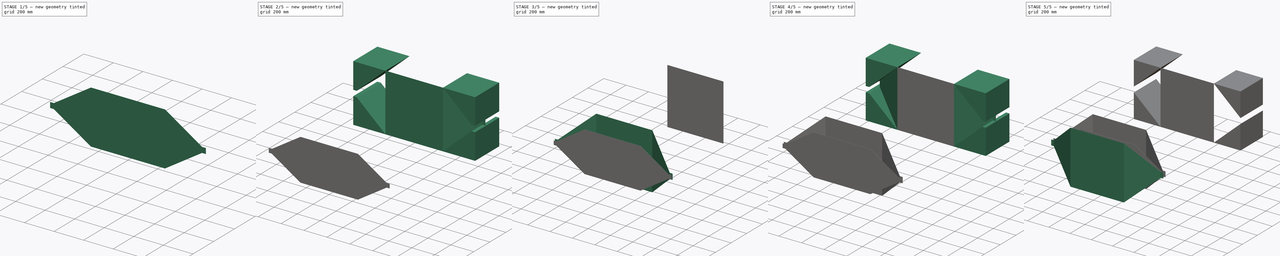
[diagram: build sequence overview — one tinted view per stage of 5, left to right]
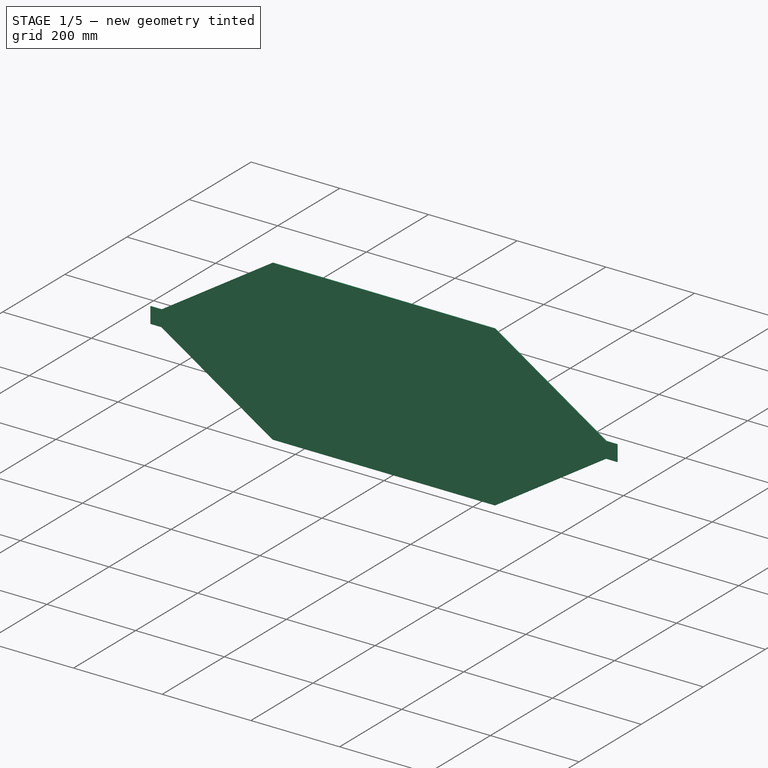
[diagram: stage 1 of 5 — iso view after this stage's code; geometry added in this stage tinted green]
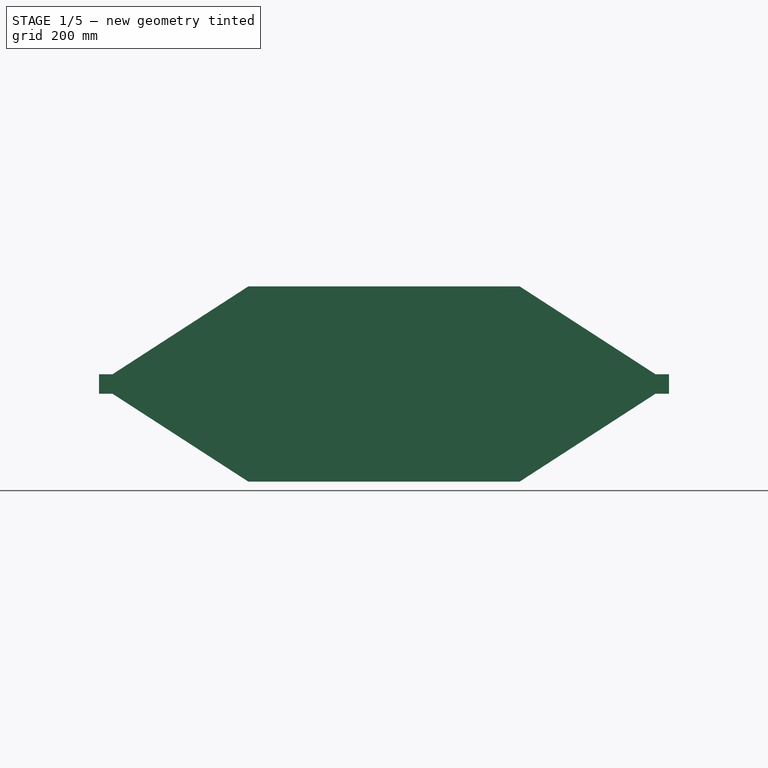
[diagram: stage 1 of 5 — front view after this stage's code; geometry added in this stage tinted green]
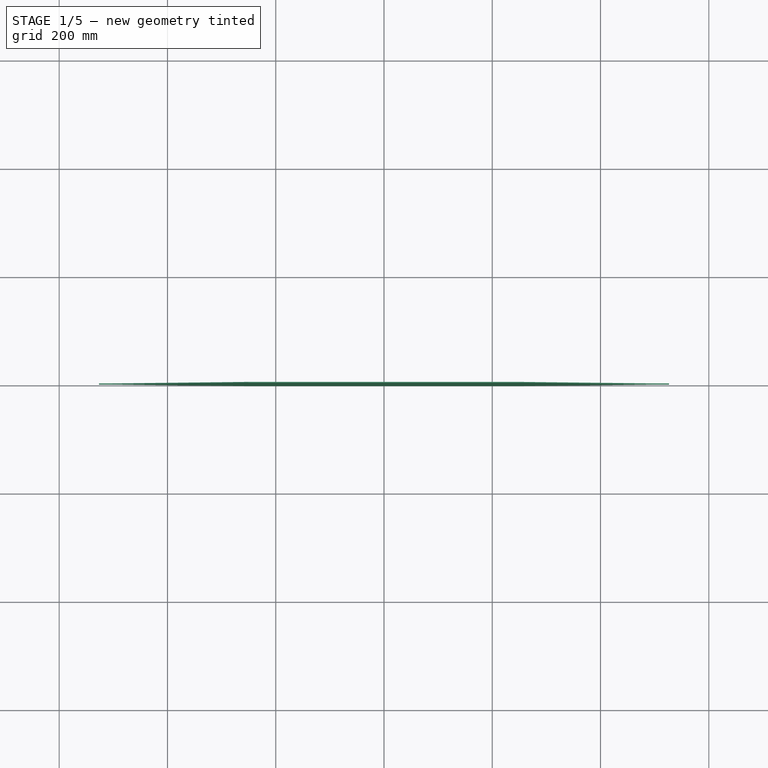
[diagram: stage 1 of 5 — top view after this stage's code; geometry added in this stage tinted green]
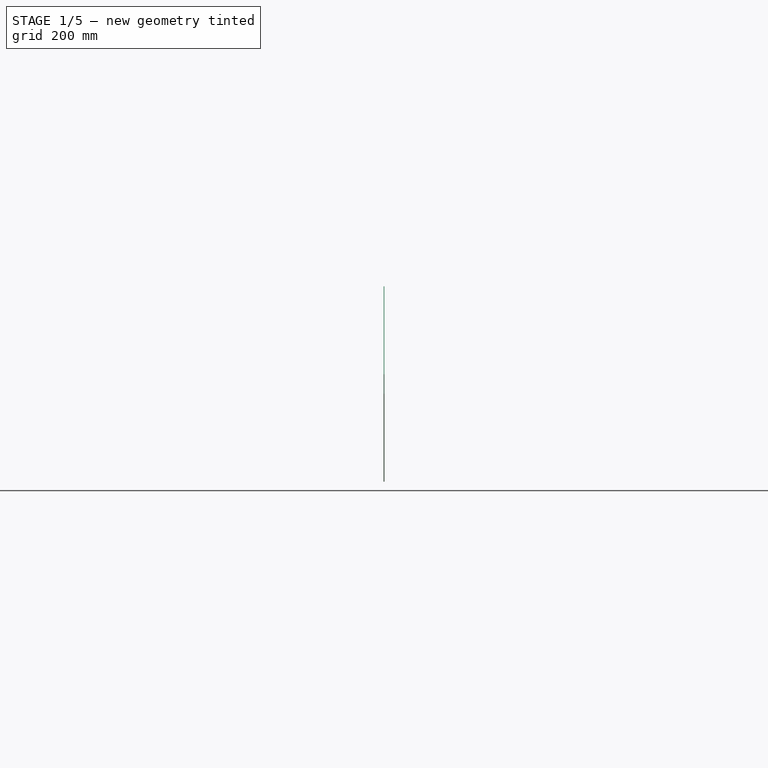
[diagram: stage 1 of 5 — right view after this stage's code; geometry added in this stage tinted green]
FCSTD DOCUMENT  (FreeCAD 0.17RUnknown)
Label: SimulationModel
License: All rights reserved
LicenseURL: http://en.wikipedia.org/wiki/All_rights_reserved
objects: Part::Extrusion×25, Part::RuledSurface×20, Part::Feature×15, Sketcher::SketchObject×6, Part::Cut×4, Part::MultiFuse×3, App::DocumentObjectGroup×2
note: 73 computed .brp shape members not serialized (recipe doc carries the construction recipe); baked Part::Feature solids carry a one-line shape summary decoded from their .brp

FEATURE [Part::Feature] Line
  shape: bbox 25 x 2e-07 x 2e-07 mm, 0 faces, 0 solids (baked)
FEATURE [Part::Feature] Line001
  shape: bbox 25 x 2e-07 x 2e-07 mm, 0 faces, 0 solids (baked)
FEATURE [Part::Feature] Line002
  shape: bbox 2e-07 x 36.1 x 2e-07 mm, 0 faces, 0 solids (baked)
FEATURE [Part::Feature] Line003
  shape: bbox 250.7 x 162.2 x 2e-07 mm, 0 faces, 0 solids (baked)
FEATURE [Part::Feature] Line004
  shape: bbox 501.5 x 2e-07 x 2e-07 mm, 0 faces, 0 solids (baked)
FEATURE [Part::Feature] Line005
  shape: bbox 250.7 x 162.2 x 2e-07 mm, 0 faces, 0 solids (baked)
FEATURE [Part::Feature] Line006
  shape: bbox 501.5 x 2e-07 x 2e-07 mm, 0 faces, 0 solids (baked)
FEATURE [Part::Feature] Line007
  shape: bbox 25 x 2e-07 x 2e-07 mm, 0 faces, 0 solids (baked)
FEATURE [Part::Feature] Line008
  shape: bbox 25 x 2e-07 x 2e-07 mm, 0 faces, 0 solids (baked)
FEATURE [Part::Feature] Line009
  shape: bbox 2e-07 x 36.1 x 2e-07 mm, 0 faces, 0 solids (baked)
FEATURE [Part::Feature] Line010
  shape: bbox 250.7 x 162.2 x 2e-07 mm, 0 faces, 0 solids (baked)
FEATURE [Part::Feature] Line011
  shape: bbox 250.7 x 162.2 x 2e-07 mm, 0 faces, 0 solids (baked)
FEATURE [App::DocumentObjectGroup] _  label="0"
  Group = -> [Line,Line001,Line002,Line003,Line004,Line005,Line006,Line007,Line008,Line009,Line010,Line011]
FEATURE [App::DocumentObjectGroup] septum
  Group = -> [_]
FEATURE [Part::RuledSurface] Ruled_Surface015
  Curve1 = -> Line003 [Edge1]
  Curve2 = -> Line005 [Edge1]
  Orientation = 0
FEATURE [Part::RuledSurface] Ruled_Surface016
  Curve1 = -> Line004 [Edge1]
  Curve2 = -> Line006 [Edge1]
  Orientation = 0
FEATURE [Part::RuledSurface] Ruled_Surface017
  Curve1 = -> Line010 [Edge1]
  Curve2 = -> Line011 [Edge1]
  Orientation = 0
FEATURE [Part::RuledSurface] Ruled_Surface018
  Curve1 = -> Line008 [Edge1]
  Curve2 = -> Line007 [Edge1]
  Orientation = 0
FEATURE [Part::RuledSurface] Ruled_Surface019
  Curve1 = -> Line001 [Edge1]
  Curve2 = -> Line [Edge1]
  Orientation = 0
FEATURE [Part::Extrusion] Extrude023
  Base = -> Ruled_Surface018
  Dir = (0,0,1.5)
  Solid = true
FEATURE [Part::Extrusion] Extrude024
  Base = -> Ruled_Surface017
  Dir = (0,0,1.5)
  Solid = true
FEATURE [Part::Extrusion] Extrude025
  Base = -> Ruled_Surface016
  Dir = (0,0,1.5)
  Solid = true
FEATURE [Part::Extrusion] Extrude026
  Base = -> Ruled_Surface015
  Dir = (0,0,1.5)
  Solid = true
FEATURE [Part::Extrusion] Extrude027
  Base = -> Ruled_Surface019
  Dir = (0,0,1.5)
  Solid = true
FEATURE [Part::MultiFuse] Fusion002  label="Septum"
  Placement = pos=(-250.75,0.75,-180.25) rot=(1,0,0;1.5708rad)
  Shapes = -> [Extrude023,Extrude024,Extrude025,Extrude026,Extrude027]
FEATURE [Part::Feature] Cut001_solid  label="Cut001 (Solid)"
  Placement = pos=(0,-3.05684,0) rot=(0,0,1;0rad)
  shape: bbox 1053 x 136.1 x 501.5 mm, 26 faces (baked)
FEATURE [Part::Feature] Cut003_solid  label="Cut003 (Solid)"
  Placement = pos=(0,3.05684,0) rot=(0,0,1;0rad)
  shape: bbox 1053 x 136.1 x 501.5 mm, 26 faces (baked)
FEATURE [Part::Feature] Fusion002_solid  label="Septum (Solid)"
  shape: bbox 1053 x 1.5 x 360.5 mm, 22 faces (baked)
FEATURE [Sketcher::SketchObject] Sketch006
  ExternalGeometry = -> [Cut003_solid]
  Placement = pos=(-237.091,3.05684,263.061) rot=(0,-1,0;0.733522rad)
  Support = -> Cut003_solid [Face18]
  sketch-geometry (2):
    g0: LineSegment StartX=-358.282 StartY=13.9432 StartZ=0 EndX=-17.7362 EndY=150 EndZ=0
    g1: LineSegment StartX=-356.133 StartY=13.9432 StartZ=0 EndX=-15.587 EndY=150 EndZ=0
  constraints (6):
    c: PointOnObject(g0,g-5)
    c: PointOnObject(g0,g-6)
    c: Parallel(g0,g-3)
    c: PointOnObject(g1,g-5)
    c: PointOnObject(g1,g-6)
    c: Parallel(g1,g-3)
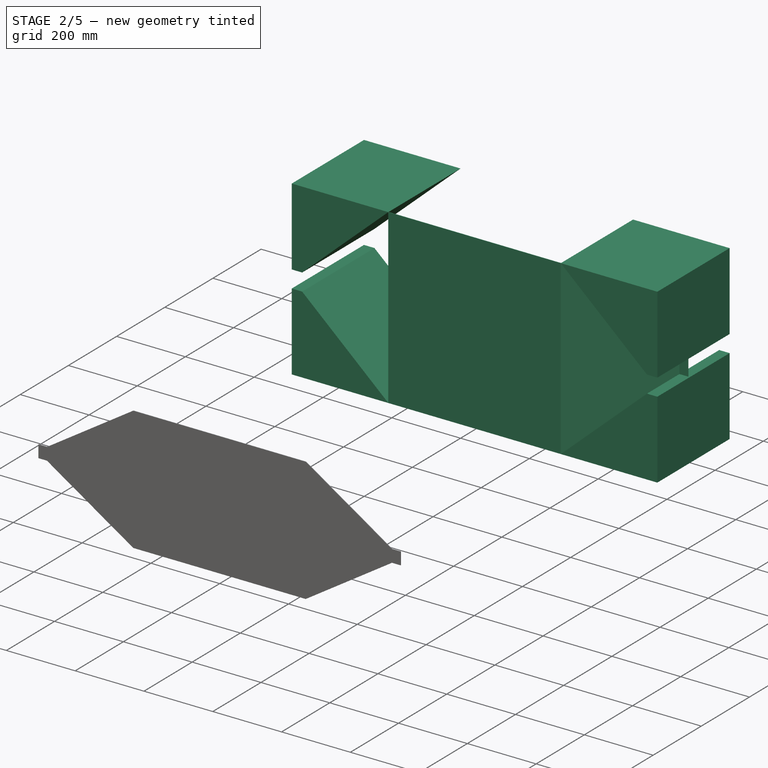
[diagram: stage 2 of 5 — iso view after this stage's code; geometry added in this stage tinted green]
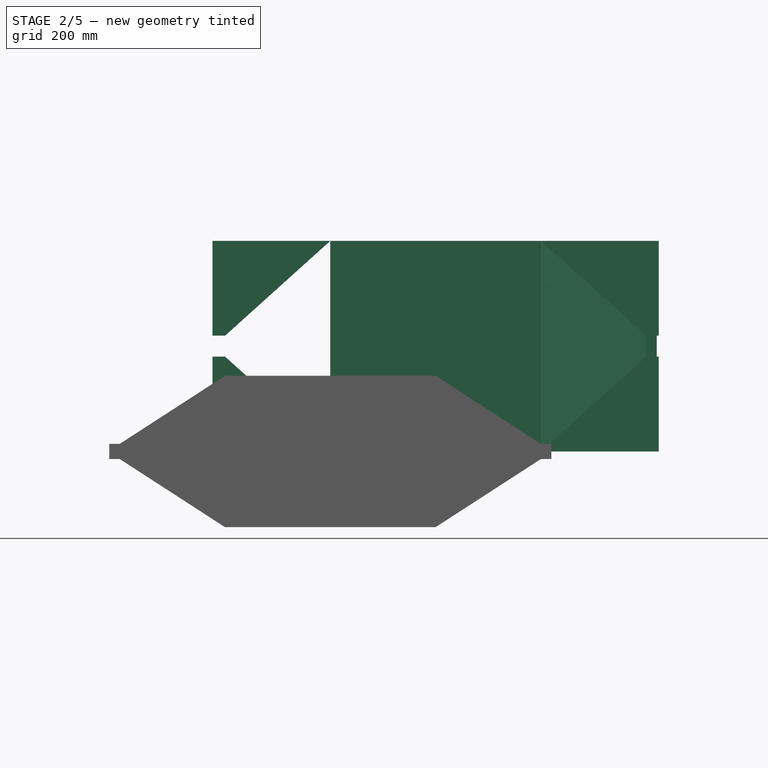
[diagram: stage 2 of 5 — front view after this stage's code; geometry added in this stage tinted green]
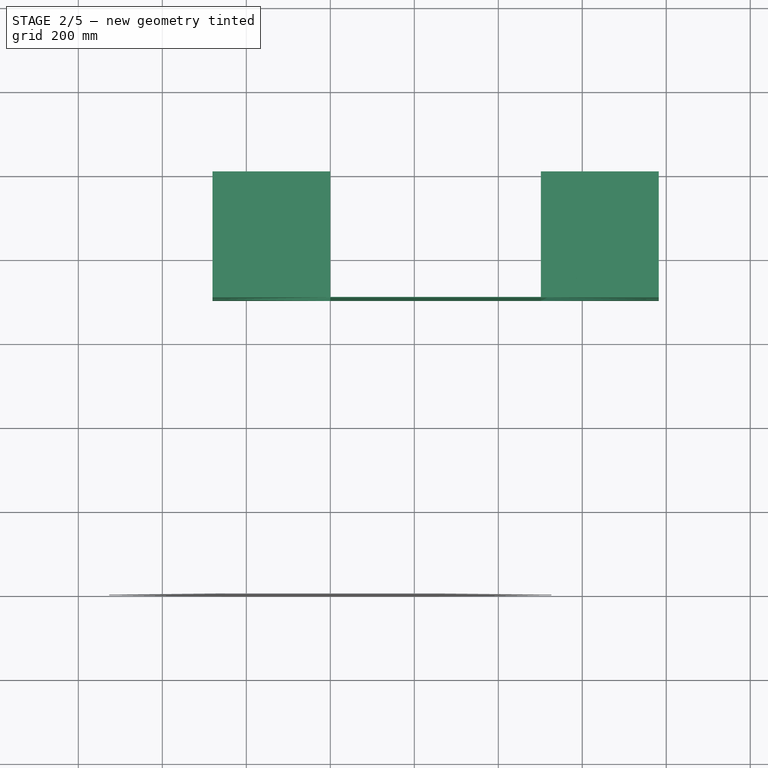
[diagram: stage 2 of 5 — top view after this stage's code; geometry added in this stage tinted green]
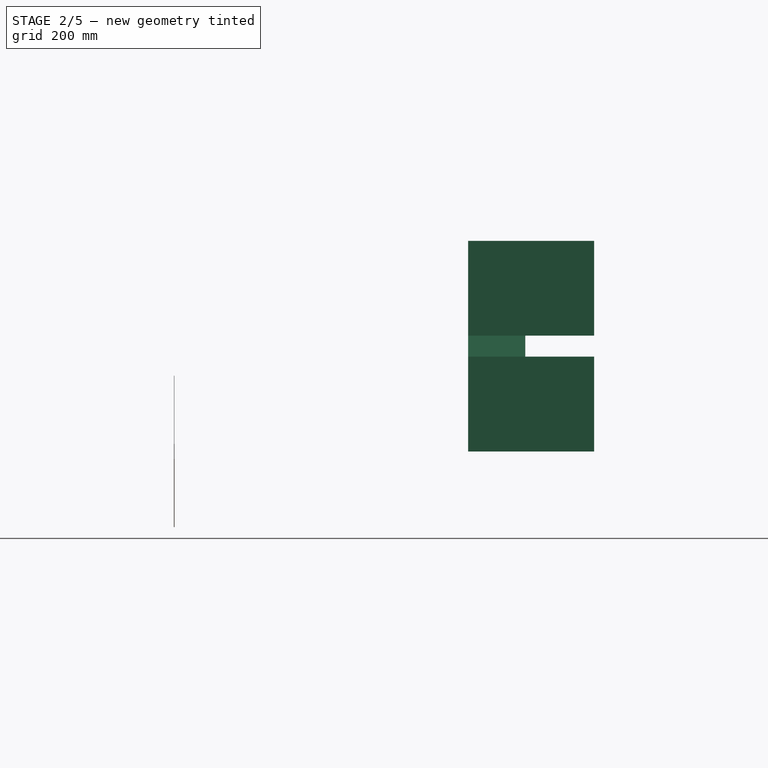
[diagram: stage 2 of 5 — right view after this stage's code; geometry added in this stage tinted green]
FEATURE [Part::Extrusion] Extrude016
  Base = -> Ruled_Surface010
  Dir = (0,0,501.5)
  Solid = true
FEATURE [Part::Extrusion] Extrude017
  Base = -> Ruled_Surface011
  Dir = (0,0,501.5)
  Solid = true
FEATURE [Part::Extrusion] Extrude018
  Base = -> Ruled_Surface012
  Dir = (0,0,501.5)
  Solid = true
FEATURE [Part::RuledSurface] Ruled_Surface013
  Orientation = 0
FEATURE [Part::Extrusion] Extrude019
  Base = -> Ruled_Surface013
  Dir = (0,0,501.5)
  Solid = true
FEATURE [Sketcher::SketchObject] Sketch004
  Placement = pos=(0,700,0) rot=(1,0,0;1.5708rad)
  Support = -> Extrude019 [Face1]
  sketch-geometry (16):
    g0: GeomPoint [constr] X=-275.644 Y=225.675 Z=0
    g1: LineSegment StartX=0 StartY=0 StartZ=0 EndX=-250.394 EndY=225.675 EndZ=0
    g2: LineSegment StartX=-250.394 StartY=225.675 StartZ=0 EndX=-250.394 EndY=0 EndZ=0
    g3: LineSegment StartX=0 StartY=0 StartZ=0 EndX=-250.394 EndY=0 EndZ=0
    g4: GeomPoint [constr] X=777.144 Y=225.675 Z=0
    g5: LineSegment StartX=501.5 StartY=0 StartZ=0 EndX=751.894 EndY=225.675 EndZ=0
    g6: LineSegment StartX=751.894 StartY=225.675 StartZ=0 EndX=751.894 EndY=0 EndZ=0
    g7: LineSegment StartX=501.5 StartY=0 StartZ=0 EndX=751.894 EndY=0 EndZ=0
    g8: GeomPoint [constr] X=-275.644 Y=275.825 Z=0
    g9: LineSegment StartX=0 StartY=501.5 StartZ=0 EndX=-250.394 EndY=275.825 EndZ=0
    g10: LineSegment StartX=-250.394 StartY=275.825 StartZ=0 EndX=-250.394 EndY=501.5 EndZ=0
    g11: LineSegment StartX=0 StartY=501.5 StartZ=0 EndX=-250.394 EndY=501.5 EndZ=0
    g12: GeomPoint [constr] X=777.144 Y=275.825 Z=0
    g13: LineSegment StartX=501.5 StartY=501.5 StartZ=0 EndX=751.894 EndY=275.825 EndZ=0
    g14: LineSegment StartX=751.894 StartY=275.825 StartZ=0 EndX=751.894 EndY=501.5 EndZ=0
    g15: LineSegment StartX=501.5 StartY=501.5 StartZ=0 EndX=751.894 EndY=501.5 EndZ=0
  constraints (19):
    c: DistanceY(g0) = 225.675
    c: DistanceX(g0) = -275.644
    c: DistanceX(g0,g1) = 25.25
    c: Coincident(g1,g-1)
    c: DistanceY(g1,g1) = 225.675
    c: Coincident(g2,g1)
    c: PointOnObject(g2,g-1)
    c: Vertical(g2)
    c: Coincident(g3,g-1)
    c: Coincident(g3,g2)
    c: Coincident(g6,g5)
    c: Vertical(g6)
    c: Coincident(g7,g6)
    c: Coincident(g10,g9)
    c: Vertical(g10)
    c: Coincident(g11,g10)
    c: Coincident(g14,g13)
    c: Vertical(g14)
    c: Coincident(g15,g14)
FEATURE [Part::RuledSurface] Ruled_Surface014
  Orientation = 0
FEATURE [Part::Extrusion] Extrude020
  Base = -> Ruled_Surface014
  Dir = (0,0,501.5)
  Solid = true
FEATURE [Sketcher::SketchObject] Sketch005
  Placement = pos=(0,700,0) rot=(1,0,0;1.5708rad)
  Support = -> Extrude020 [Face1]
  sketch-geometry (20):
    g0: GeomPoint [constr] X=-280.644 Y=225.675 Z=0
    g1: LineSegment StartX=-250.394 StartY=225.675 StartZ=0 EndX=-250.394 EndY=0 EndZ=0
    g2: LineSegment StartX=-250.394 StartY=225.675 StartZ=0 EndX=-280.644 EndY=225.675 EndZ=0
    g3: LineSegment StartX=-280.644 StartY=225.675 StartZ=0 EndX=-280.644 EndY=0 EndZ=0
    g4: GeomPoint [constr] X=782.144 Y=225.675 Z=0
    g5: LineSegment StartX=751.894 StartY=225.675 StartZ=0 EndX=751.894 EndY=0 EndZ=0
    g6: LineSegment StartX=751.894 StartY=225.675 StartZ=0 EndX=782.144 EndY=225.675 EndZ=0
    g7: LineSegment StartX=782.144 StartY=225.675 StartZ=0 EndX=782.144 EndY=0 EndZ=0
    g8: LineSegment StartX=751.894 StartY=0 StartZ=0 EndX=782.144 EndY=0 EndZ=0
    g9: LineSegment StartX=-280.644 StartY=0 StartZ=0 EndX=-250.394 EndY=0 EndZ=0
    g10: GeomPoint [constr] X=-280.644 Y=275.825 Z=0
    g11: LineSegment StartX=-250.394 StartY=275.825 StartZ=0 EndX=-250.394 EndY=501.5 EndZ=0
    g12: LineSegment StartX=-250.394 StartY=275.825 StartZ=0 EndX=-280.644 EndY=275.825 EndZ=0
    g13: LineSegment StartX=-280.644 StartY=275.825 StartZ=0 EndX=-280.644 EndY=501.5 EndZ=0
    g14: GeomPoint [constr] X=782.144 Y=275.825 Z=0
    g15: LineSegment StartX=751.894 StartY=275.825 StartZ=0 EndX=751.894 EndY=501.5 EndZ=0
    g16: LineSegment StartX=751.894 StartY=275.825 StartZ=0 EndX=782.144 EndY=275.825 EndZ=0
    g17: LineSegment StartX=782.144 StartY=275.825 StartZ=0 EndX=782.144 EndY=501.5 EndZ=0
    g18: LineSegment StartX=751.894 StartY=501.5 StartZ=0 EndX=782.144 EndY=501.5 EndZ=0
    g19: LineSegment StartX=-280.644 StartY=501.5 StartZ=0 EndX=-250.394 EndY=501.5 EndZ=0
  constraints (42):
    c: DistanceY(g0) = 225.675
    c: DistanceX(g0) = -280.644
    c: DistanceX(g0,g1) = 30.25
    c: DistanceY(g-1,g1) = 225.675
    c: PointOnObject(g1,g-1)
    c: Vertical(g1)
    c: Coincident(g2,g1)
    c: Coincident(g2,g0)
    c: Coincident(g3,g0)
    c: PointOnObject(g3,g-1)
    c: Vertical(g3)
    c: Vertical(g5)
    c: Coincident(g6,g5)
    c: Coincident(g6,g4)
    c: Coincident(g7,g4)
    c: Vertical(g7)
    c: DistanceY(g5) = 225.675
    c: Horizontal(g6)
    c: Coincident(g8,g5)
    c: Coincident(g8,g7)
    c: Horizontal(g8)
    c: DistanceX(g5,g4) = 30.25
    c: Coincident(g9,g3)
    c: Coincident(g9,g1)
    c: DistanceX(g-1,g5) = 751.894
    c: DistanceY(g7) = 0
    c: Vertical(g11)
    c: Coincident(g12,g11)
    c: Coincident(g12,g10)
    c: Coincident(g13,g10)
    c: Vertical(g13)
    c: Vertical(g15)
    c: Coincident(g16,g15)
    c: Coincident(g16,g14)
    c: Coincident(g17,g14)
    c: Vertical(g17)
    c: Horizontal(g16)
    c: Coincident(g18,g15)
    c: Coincident(g18,g17)
    c: Horizontal(g18)
    c: Coincident(g19,g13)
    c: Coincident(g19,g11)
FEATURE [Part::Extrusion] Extrude021
  Base = -> Sketch005
  Dir = (0,300,0)
  Solid = true
FEATURE [Part::Extrusion] Extrude022
  Base = -> Sketch004
  Dir = (0,300,0)
  Solid = true
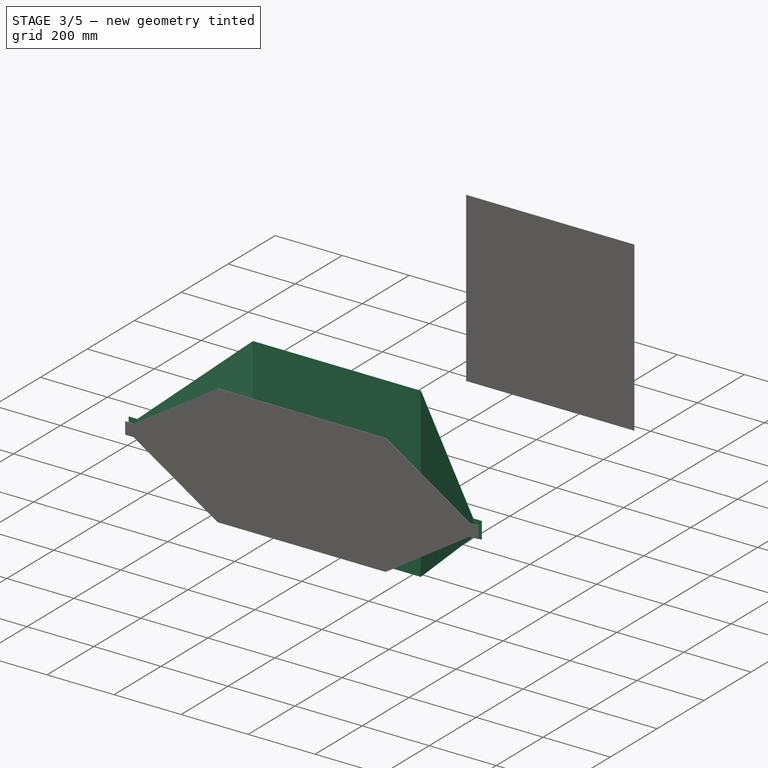
[diagram: stage 3 of 5 — iso view after this stage's code; geometry added in this stage tinted green]
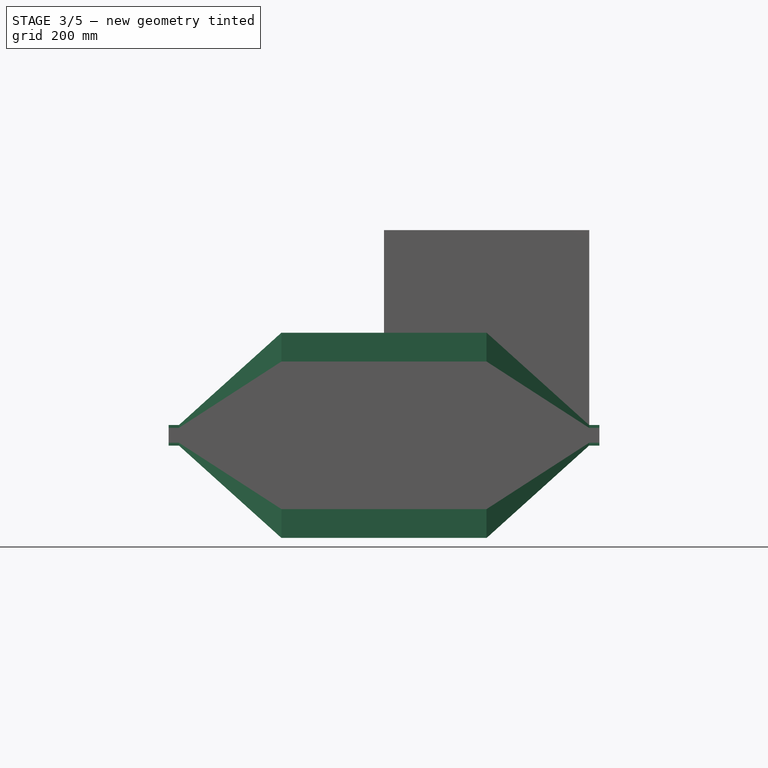
[diagram: stage 3 of 5 — front view after this stage's code; geometry added in this stage tinted green]
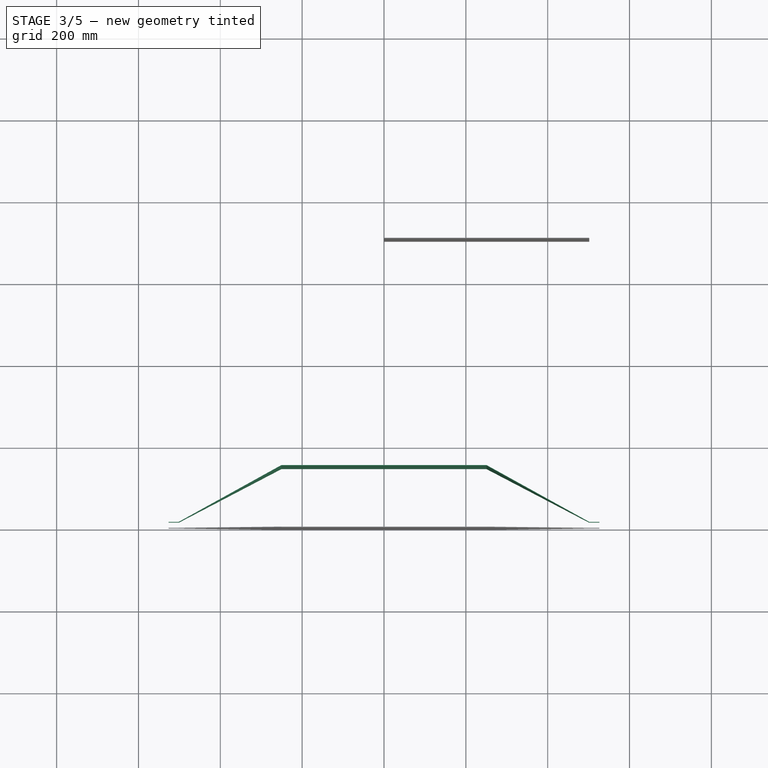
[diagram: stage 3 of 5 — top view after this stage's code; geometry added in this stage tinted green]
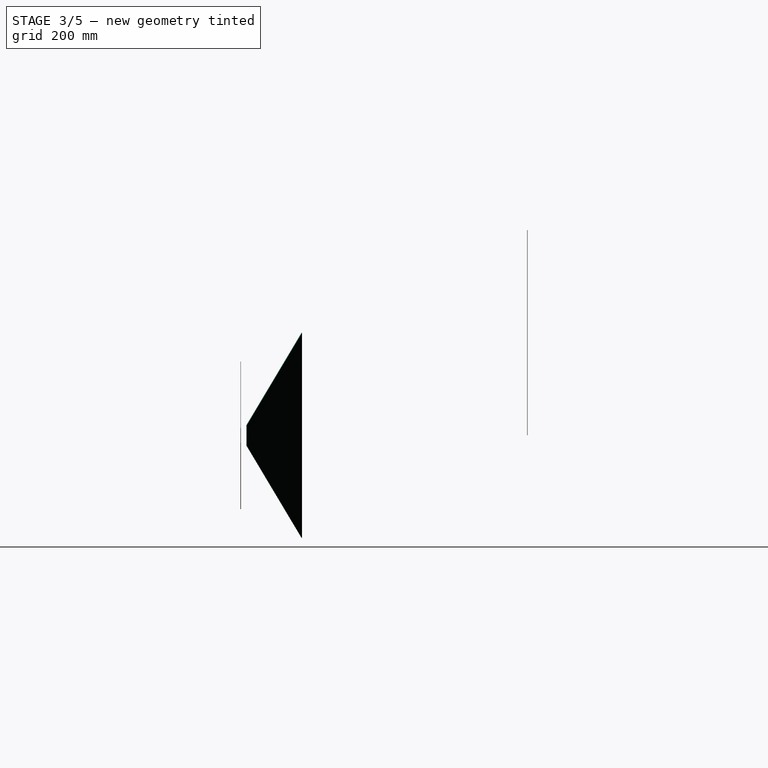
[diagram: stage 3 of 5 — right view after this stage's code; geometry added in this stage tinted green]
FEATURE [Part::RuledSurface] Ruled_Surface005
  Orientation = 0
FEATURE [Part::Extrusion] Extrude007
  Base = -> Ruled_Surface005
  Dir = (0,0,501.5)
  Solid = true
FEATURE [Part::RuledSurface] Ruled_Surface008 .. Ruled_Surface012  x5 (patterned run collapsed; names and placements below)
  Orientation = 0
FEATURE [Part::Extrusion] Extrude014
  Base = -> Ruled_Surface008
  Dir = (0,0,501.5)
  Solid = true
FEATURE [Part::Extrusion] Extrude015
  Base = -> Ruled_Surface009
  Dir = (0,0,501.5)
  Solid = true
FEATURE [Part::MultiFuse] Fusion001
  Shapes = -> [Extrude018,Extrude017,Extrude016,Extrude015,Extrude014]
FEATURE [Part::Cut] Cut002
  Base = -> Fusion001
  Tool = -> Extrude021
FEATURE [Part::Cut] Cut003
  Base = -> Cut002
  Placement = pos=(-250.75,850,250.75) rot=(1,0,0;3.14159rad)
  Tool = -> Extrude022
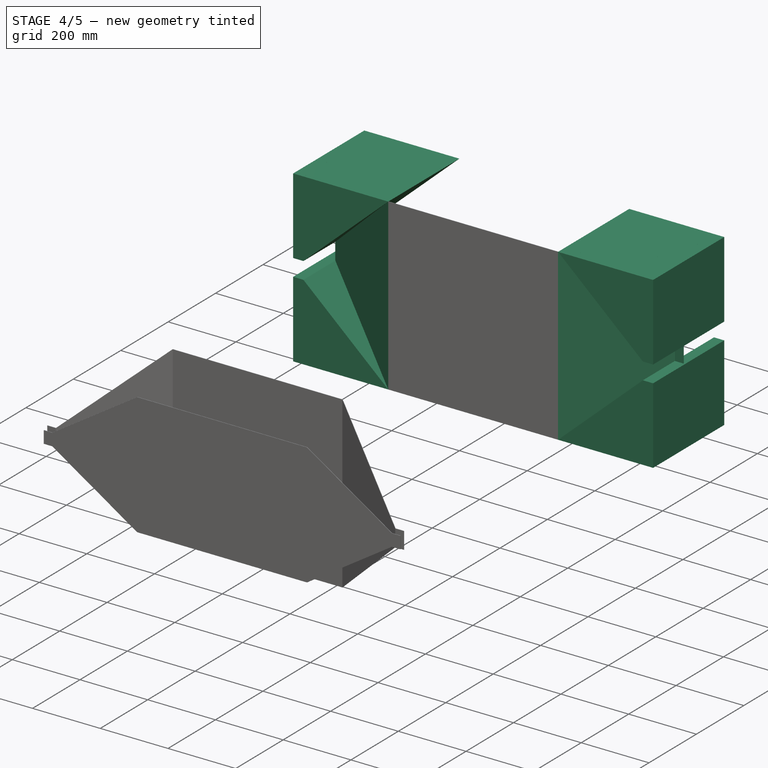
[diagram: stage 4 of 5 — iso view after this stage's code; geometry added in this stage tinted green]
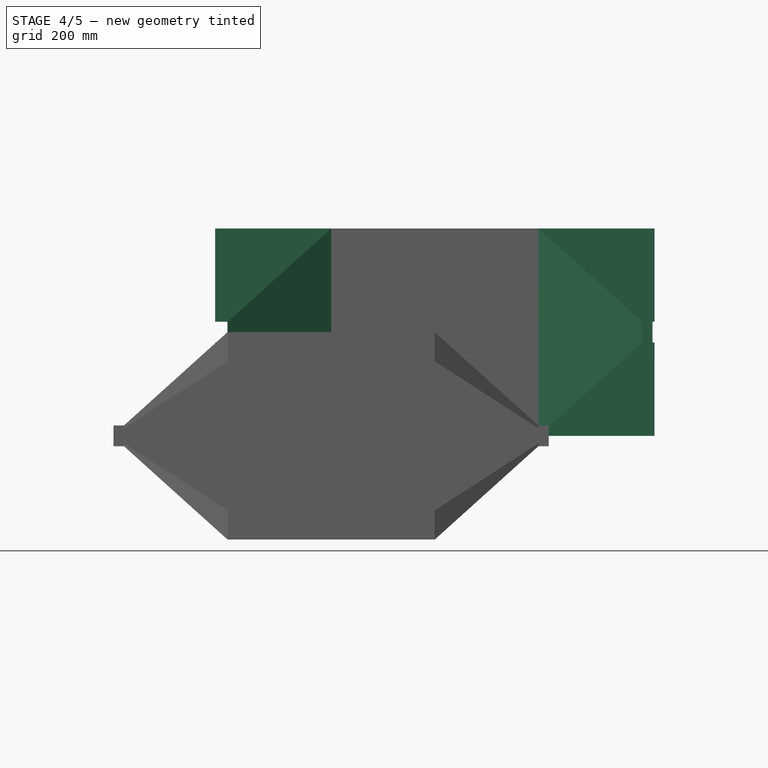
[diagram: stage 4 of 5 — front view after this stage's code; geometry added in this stage tinted green]
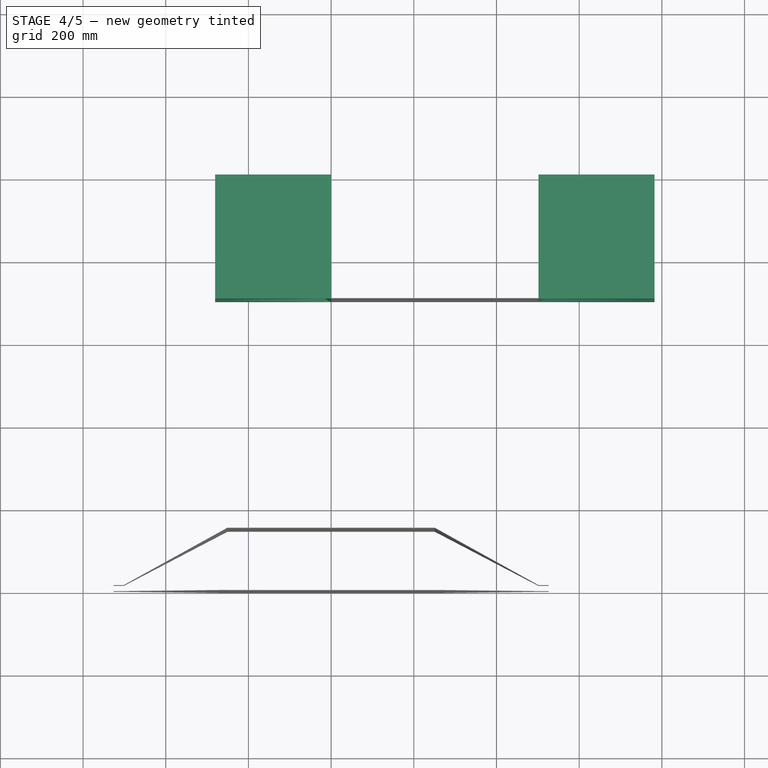
[diagram: stage 4 of 5 — top view after this stage's code; geometry added in this stage tinted green]
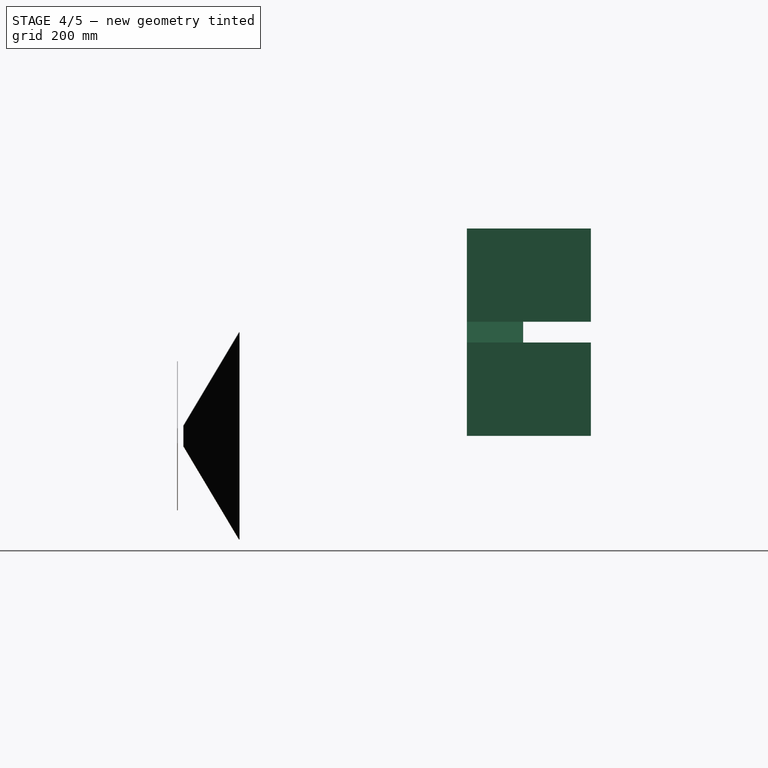
[diagram: stage 4 of 5 — right view after this stage's code; geometry added in this stage tinted green]
FEATURE [Part::Extrusion] Extrude001
  Base = -> Ruled_Surface001
  Dir = (0,0,501.5)
  Solid = true
FEATURE [Part::Extrusion] Extrude002
  Base = -> Ruled_Surface002
  Dir = (0,0,501.5)
  Solid = true
FEATURE [Part::Extrusion] Extrude003
  Base = -> Ruled_Surface003
  Dir = (0,0,501.5)
  Solid = true
FEATURE [Part::Extrusion] Extrude004
  Base = -> Ruled_Surface004
  Dir = (0,0,501.5)
  Solid = true
FEATURE [Sketcher::SketchObject] Sketch002
  Placement = pos=(0,700,0) rot=(1,0,0;1.5708rad)
  Support = -> Extrude007 [Face1]
  sketch-geometry (16):
    g0: GeomPoint [constr] X=-275.644 Y=225.675 Z=0
    g1: LineSegment StartX=0 StartY=0 StartZ=0 EndX=-250.394 EndY=225.675 EndZ=0
    g2: LineSegment StartX=-250.394 StartY=225.675 StartZ=0 EndX=-250.394 EndY=0 EndZ=0
    g3: LineSegment StartX=0 StartY=0 StartZ=0 EndX=-250.394 EndY=0 EndZ=0
    g4: GeomPoint [constr] X=777.144 Y=225.675 Z=0
    g5: LineSegment StartX=501.5 StartY=0 StartZ=0 EndX=751.894 EndY=225.675 EndZ=0
    g6: LineSegment StartX=751.894 StartY=225.675 StartZ=0 EndX=751.894 EndY=0 EndZ=0
    g7: LineSegment StartX=501.5 StartY=0 StartZ=0 EndX=751.894 EndY=0 EndZ=0
    g8: GeomPoint [constr] X=-275.644 Y=275.825 Z=0
    g9: LineSegment StartX=0 StartY=501.5 StartZ=0 EndX=-250.394 EndY=275.825 EndZ=0
    g10: LineSegment StartX=-250.394 StartY=275.825 StartZ=0 EndX=-250.394 EndY=501.5 EndZ=0
    g11: LineSegment StartX=0 StartY=501.5 StartZ=0 EndX=-250.394 EndY=501.5 EndZ=0
    g12: GeomPoint [constr] X=777.144 Y=275.825 Z=0
    g13: LineSegment StartX=501.5 StartY=501.5 StartZ=0 EndX=751.894 EndY=275.825 EndZ=0
    g14: LineSegment StartX=751.894 StartY=275.825 StartZ=0 EndX=751.894 EndY=501.5 EndZ=0
    g15: LineSegment StartX=501.5 StartY=501.5 StartZ=0 EndX=751.894 EndY=501.5 EndZ=0
  constraints (19):
    c: DistanceY(g0) = 225.675
    c: DistanceX(g0) = -275.644
    c: DistanceX(g0,g1) = 25.25
    c: Coincident(g1,g-1)
    c: DistanceY(g1,g1) = 225.675
    c: Coincident(g2,g1)
    c: PointOnObject(g2,g-1)
    c: Vertical(g2)
    c: Coincident(g3,g-1)
    c: Coincident(g3,g2)
    c: Coincident(g6,g5)
    c: Vertical(g6)
    c: Coincident(g7,g6)
    c: Coincident(g10,g9)
    c: Vertical(g10)
    c: Coincident(g11,g10)
    c: Coincident(g14,g13)
    c: Vertical(g14)
    c: Coincident(g15,g14)
FEATURE [Sketcher::SketchObject] Sketch
  Placement = pos=(0,0,0) rot=(-1,0,0;4.71239rad)
FEATURE [Part::RuledSurface] Ruled_Surface006
  Orientation = 0
FEATURE [Part::Extrusion] Extrude009
  Base = -> Ruled_Surface006
  Dir = (0,0,501.5)
  Solid = true
FEATURE [Part::Extrusion] Extrude011
  Base = -> Sketch003
  Dir = (0,300,0)
  Solid = true
FEATURE [Part::Extrusion] Extrude013
  Base = -> Sketch002
  Dir = (0,300,0)
  Solid = true
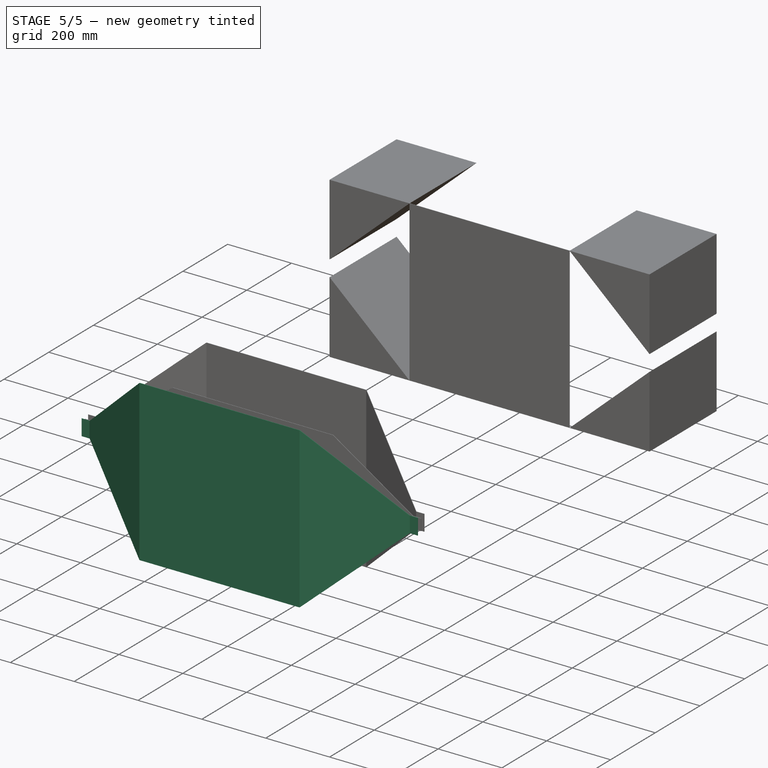
[diagram: stage 5 of 5 — iso view after this stage's code; geometry added in this stage tinted green]
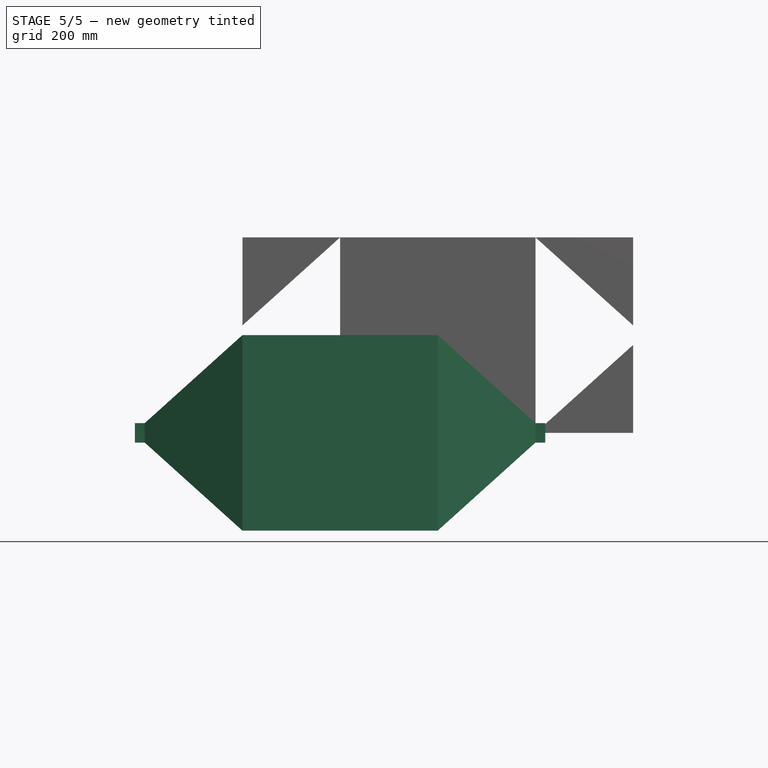
[diagram: stage 5 of 5 — front view after this stage's code; geometry added in this stage tinted green]
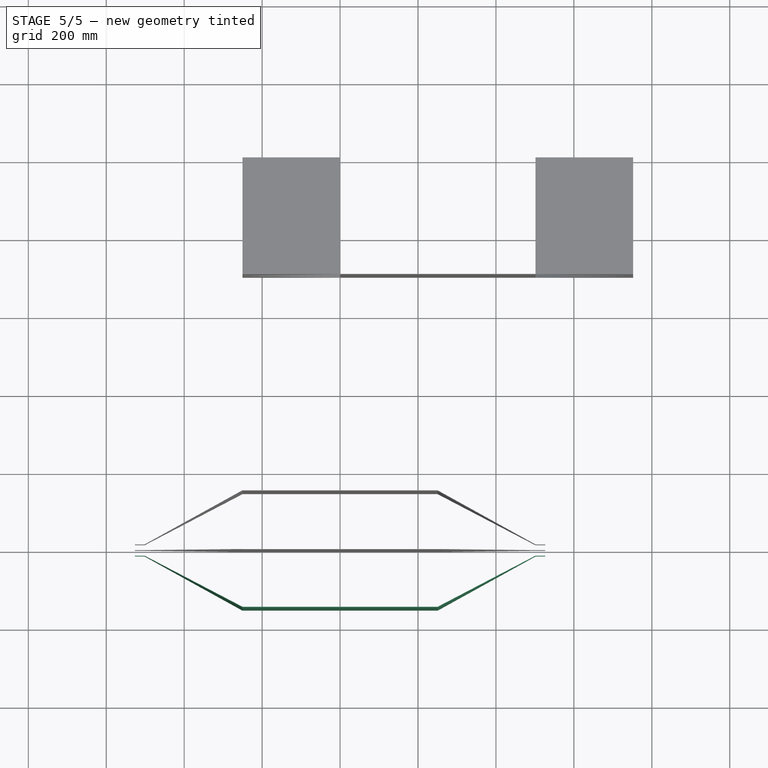
[diagram: stage 5 of 5 — top view after this stage's code; geometry added in this stage tinted green]
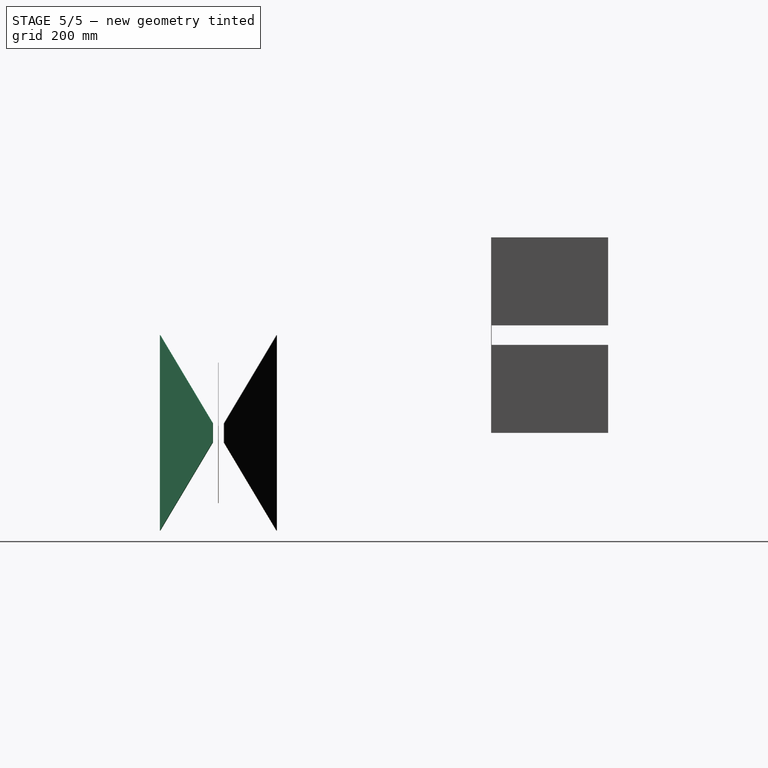
[diagram: stage 5 of 5 — right view after this stage's code; geometry added in this stage tinted green]
FEATURE [Part::RuledSurface] Ruled_Surface
  Orientation = 0
FEATURE [Part::RuledSurface] Ruled_Surface001 .. Ruled_Surface004  x4 (patterned run collapsed; names and placements below)
  Orientation = 0
FEATURE [Part::Extrusion] Extrude
  Base = -> Ruled_Surface
  Dir = (0,0,501.5)
  Solid = true
FEATURE [Part::MultiFuse] Fusion
  Shapes = -> [Extrude004,Extrude003,Extrude002,Extrude001,Extrude]
FEATURE [Sketcher::SketchObject] Sketch003
  Placement = pos=(0,700,0) rot=(1,0,0;1.5708rad)
  Support = -> Extrude009 [Face1]
  sketch-geometry (20):
    g0: GeomPoint [constr] X=-280.644 Y=225.675 Z=0
    g1: LineSegment StartX=-250.394 StartY=225.675 StartZ=0 EndX=-250.394 EndY=0 EndZ=0
    g2: LineSegment StartX=-250.394 StartY=225.675 StartZ=0 EndX=-280.644 EndY=225.675 EndZ=0
    g3: LineSegment StartX=-280.644 StartY=225.675 StartZ=0 EndX=-280.644 EndY=0 EndZ=0
    g4: GeomPoint [constr] X=782.144 Y=225.675 Z=0
    g5: LineSegment StartX=751.894 StartY=225.675 StartZ=0 EndX=751.894 EndY=0 EndZ=0
    g6: LineSegment StartX=751.894 StartY=225.675 StartZ=0 EndX=782.144 EndY=225.675 EndZ=0
    g7: LineSegment StartX=782.144 StartY=225.675 StartZ=0 EndX=782.144 EndY=0 EndZ=0
    g8: LineSegment StartX=751.894 StartY=0 StartZ=0 EndX=782.144 EndY=0 EndZ=0
    g9: LineSegment StartX=-280.644 StartY=0 StartZ=0 EndX=-250.394 EndY=0 EndZ=0
    g10: GeomPoint [constr] X=-280.644 Y=275.825 Z=0
    g11: LineSegment StartX=-250.394 StartY=275.825 StartZ=0 EndX=-250.394 EndY=501.5 EndZ=0
    g12: LineSegment StartX=-250.394 StartY=275.825 StartZ=0 EndX=-280.644 EndY=275.825 EndZ=0
    g13: LineSegment StartX=-280.644 StartY=275.825 StartZ=0 EndX=-280.644 EndY=501.5 EndZ=0
    g14: GeomPoint [constr] X=782.144 Y=275.825 Z=0
    g15: LineSegment StartX=751.894 StartY=275.825 StartZ=0 EndX=751.894 EndY=501.5 EndZ=0
    g16: LineSegment StartX=751.894 StartY=275.825 StartZ=0 EndX=782.144 EndY=275.825 EndZ=0
    g17: LineSegment StartX=782.144 StartY=275.825 StartZ=0 EndX=782.144 EndY=501.5 EndZ=0
    g18: LineSegment StartX=751.894 StartY=501.5 StartZ=0 EndX=782.144 EndY=501.5 EndZ=0
    g19: LineSegment StartX=-280.644 StartY=501.5 StartZ=0 EndX=-250.394 EndY=501.5 EndZ=0
  constraints (42):
    c: DistanceY(g0) = 225.675
    c: DistanceX(g0) = -280.644
    c: DistanceX(g0,g1) = 30.25
    c: DistanceY(g-1,g1) = 225.675
    c: PointOnObject(g1,g-1)
    c: Vertical(g1)
    c: Coincident(g2,g1)
    c: Coincident(g2,g0)
    c: Coincident(g3,g0)
    c: PointOnObject(g3,g-1)
    c: Vertical(g3)
    c: Vertical(g5)
    c: Coincident(g6,g5)
    c: Coincident(g6,g4)
    c: Coincident(g7,g4)
    c: Vertical(g7)
    c: DistanceY(g5) = 225.675
    c: Horizontal(g6)
    c: Coincident(g8,g5)
    c: Coincident(g8,g7)
    c: Horizontal(g8)
    c: DistanceX(g5,g4) = 30.25
    c: Coincident(g9,g3)
    c: Coincident(g9,g1)
    c: DistanceX(g-1,g5) = 751.894
    c: DistanceY(g7) = 0
    c: Vertical(g11)
    c: Coincident(g12,g11)
    c: Coincident(g12,g10)
    c: Coincident(g13,g10)
    c: Vertical(g13)
    c: Vertical(g15)
    c: Coincident(g16,g15)
    c: Coincident(g16,g14)
    c: Coincident(g17,g14)
    c: Vertical(g17)
    c: Horizontal(g16)
    c: Coincident(g18,g15)
    c: Coincident(g18,g17)
    c: Horizontal(g18)
    c: Coincident(g19,g13)
    c: Coincident(g19,g11)
FEATURE [Part::RuledSurface] Ruled_Surface007
  Orientation = 0
FEATURE [Part::Extrusion] Extrude010
  Base = -> Ruled_Surface007
  Dir = (0,0,501.5)
  Solid = true
FEATURE [Part::Cut] Cut
  Base = -> Fusion
  Tool = -> Extrude011
FEATURE [Part::Extrusion] Extrude012
  Base = -> Sketch002
  Dir = (0,300,0)
  Solid = true
FEATURE [Part::Cut] Cut001
  Base = -> Cut
  Placement = pos=(-250.75,-850,-250.75) rot=(0,0,1;0rad)
  Tool = -> Extrude013
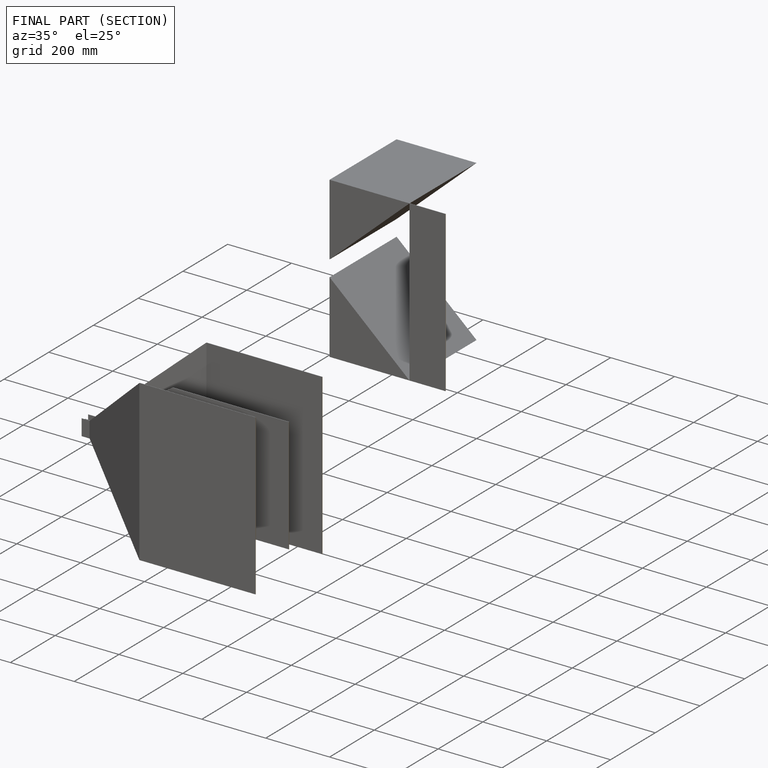
[diagram: finished part — half-section view (interior)]
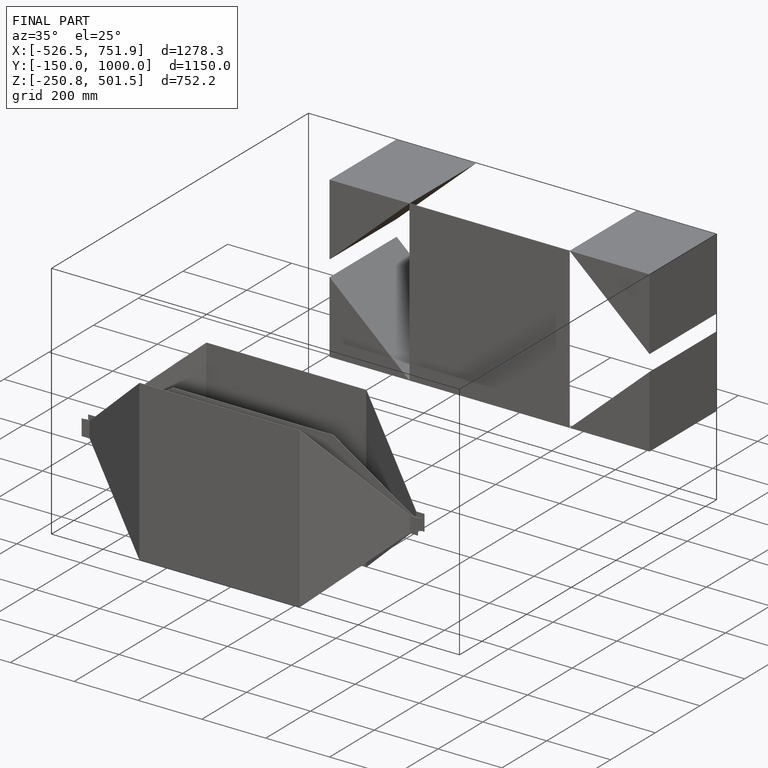
[diagram: finished part — iso view with bounding-box wireframe]
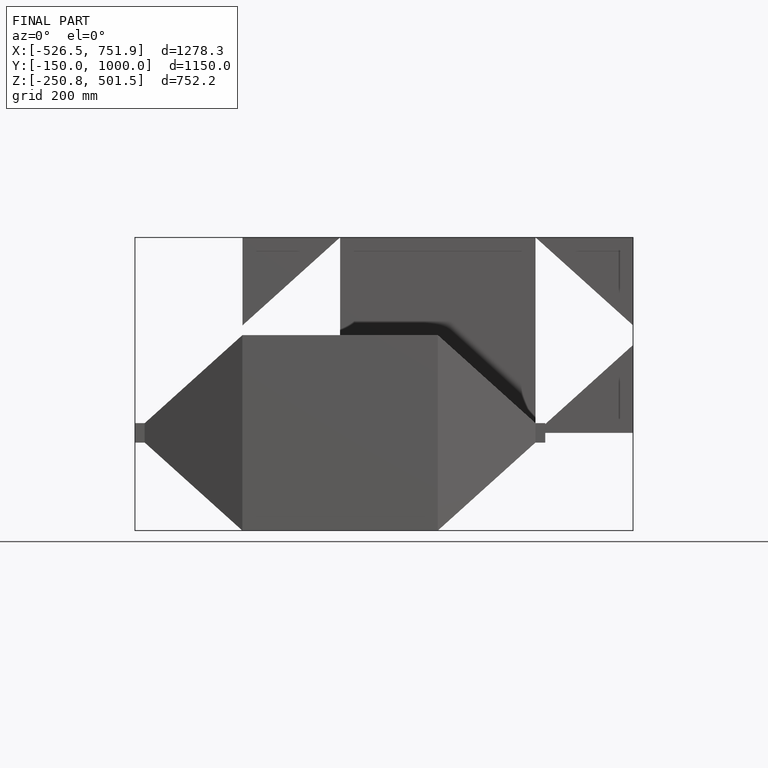
[diagram: finished part — front view with bounding-box wireframe]
